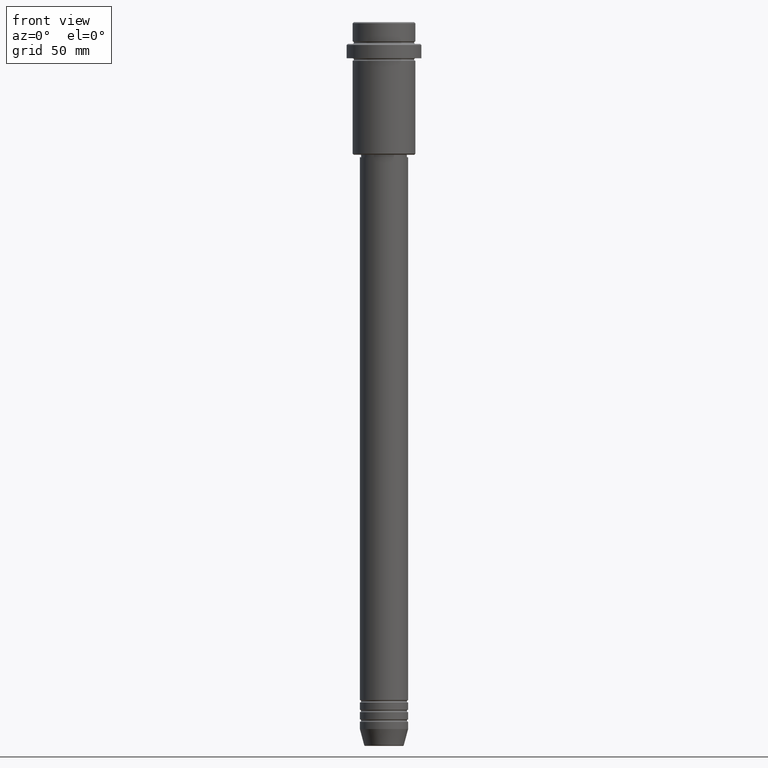
[diagram: clean part render]
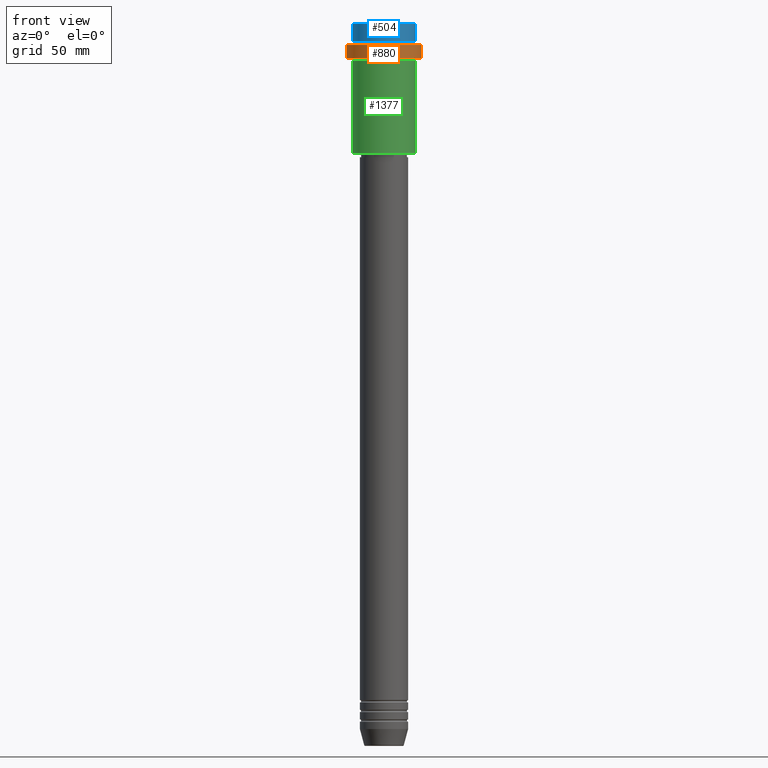
[diagram: same view with three faces highlighted in distinct colors, each labeled with its STEP entity id]
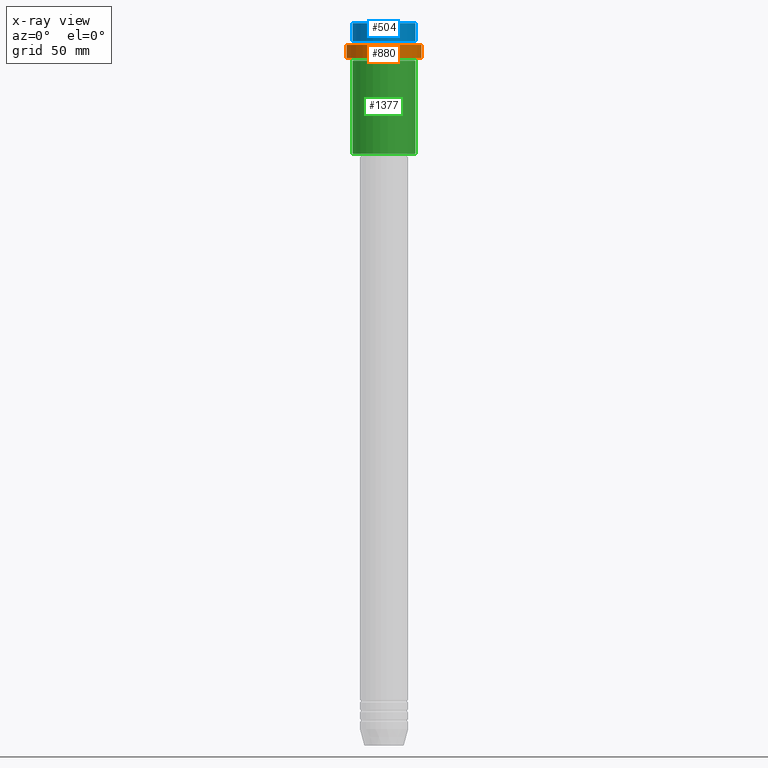
[diagram: x-ray of the same camera — body ghosted, the three highlighted faces saturated]
A machine part, front view with three faces highlighted in distinct colors.
The next image is the same camera in x-ray (body ghosted, the three faces saturated) — at least one of them is partly hidden behind the body in this view.
Their STEP definitions:

[orange] entity #880 — the highlighted cylindrical surface (partial cylindrical patch) has radius 15.5 mm, axis along (-0, -0, 1).
#2 = FACE_OUTER_BOUND ( 'NONE', #513, .T. ) ;
#29 = CYLINDRICAL_SURFACE ( 'NONE', #918, 15.50000000000000000 ) ;
#110 = DIRECTION ( 'NONE',  ( 1.000000000000000000, 0.000000000000000000, 0.000000000000000000 ) ) ;
#116 = AXIS2_PLACEMENT_3D ( 'NONE', #165, #927, #510 ) ;
#154 = DIRECTION ( 'NONE',  ( -0.000000000000000000, -0.000000000000000000, 1.000000000000000000 ) ) ;
#165 = CARTESIAN_POINT ( 'NONE',  ( 0.000000000000000000, 0.000000000000000000, -9.499999999999984013 ) ) ;
#170 = ORIENTED_EDGE ( 'NONE', *, *, #972, .T. ) ;
#191 = LINE ( 'NONE', #594, #616 ) ;
#255 = DIRECTION ( 'NONE',  ( -0.000000000000000000, -0.000000000000000000, 1.000000000000000000 ) ) ;
#347 = VECTOR ( 'NONE', #255, 1000.000000000000000 ) ;
#375 = LINE ( 'NONE', #698, #347 ) ;
#447 = VERTEX_POINT ( 'NONE', #1336 ) ;
#497 = EDGE_CURVE ( 'NONE', #447, #566, #1222, .T. ) ;
#510 = DIRECTION ( 'NONE',  ( 1.000000000000000000, 0.000000000000000000, 0.000000000000000000 ) ) ;
#513 = EDGE_LOOP ( 'NONE', ( #1230, #647, #170, #1190 ) ) ;
#566 = VERTEX_POINT ( 'NONE', #589 ) ;
#589 = CARTESIAN_POINT ( 'NONE',  ( -15.50000000000000000, 1.898202538678397557E-15, -9.499999999999984013 ) ) ;
#594 = CARTESIAN_POINT ( 'NONE',  ( 15.50000000000000000, 0.000000000000000000, 0.000000000000000000 ) ) ;
#616 = VECTOR ( 'NONE', #154, 1000.000000000000000 ) ;
#647 = ORIENTED_EDGE ( 'NONE', *, *, #1239, .T. ) ;
#679 = CARTESIAN_POINT ( 'NONE',  ( -15.50000000000000000, 1.898202538678397557E-15, -15.00000000000000000 ) ) ;
#698 = CARTESIAN_POINT ( 'NONE',  ( -15.50000000000000000, 1.898202538678397557E-15, 0.000000000000000000 ) ) ;
#850 = AXIS2_PLACEMENT_3D ( 'NONE', #999, #1129, #1363 ) ;
#869 = VERTEX_POINT ( 'NONE', #679 ) ;
#872 = CARTESIAN_POINT ( 'NONE',  ( 0.000000000000000000, 0.000000000000000000, 0.000000000000000000 ) ) ;
#880 = ADVANCED_FACE ( 'NONE', ( #2 ), #29, .T. ) ;
#918 = AXIS2_PLACEMENT_3D ( 'NONE', #872, #1094, #110 ) ;
#920 = CIRCLE ( 'NONE', #850, 15.50000000000000000 ) ;
#927 = DIRECTION ( 'NONE',  ( 0.000000000000000000, 0.000000000000000000, -1.000000000000000000 ) ) ;
#969 = VERTEX_POINT ( 'NONE', #1168 ) ;
#972 = EDGE_CURVE ( 'NONE', #969, #447, #191, .T. ) ;
#999 = CARTESIAN_POINT ( 'NONE',  ( 0.000000000000000000, 0.000000000000000000, -15.00000000000000000 ) ) ;
#1094 = DIRECTION ( 'NONE',  ( -0.000000000000000000, -0.000000000000000000, 1.000000000000000000 ) ) ;
#1129 = DIRECTION ( 'NONE',  ( -0.000000000000000000, -0.000000000000000000, 1.000000000000000000 ) ) ;
#1168 = CARTESIAN_POINT ( 'NONE',  ( 15.50000000000000000, 0.000000000000000000, -15.00000000000000000 ) ) ;
#1190 = ORIENTED_EDGE ( 'NONE', *, *, #497, .T. ) ;
#1222 = CIRCLE ( 'NONE', #116, 15.50000000000000000 ) ;
#1230 = ORIENTED_EDGE ( 'NONE', *, *, #1249, .F. ) ;
#1239 = EDGE_CURVE ( 'NONE', #869, #969, #920, .T. ) ;
#1249 = EDGE_CURVE ( 'NONE', #869, #566, #375, .T. ) ;
#1336 = CARTESIAN_POINT ( 'NONE',  ( 15.50000000000000000, 0.000000000000000000, -9.499999999999984013 ) ) ;
#1363 = DIRECTION ( 'NONE',  ( 1.000000000000000000, 0.000000000000000000, 0.000000000000000000 ) ) ;

[blue] entity #504 — the highlighted cylindrical surface (edge-blend (fillet) strip) has radius 13 mm, axis along (-0, -0, 1).
#19 = CARTESIAN_POINT ( 'NONE',  ( -12.99999999999999822, 1.592040838891558898E-15, 0.000000000000000000 ) ) ;
#44 = DIRECTION ( 'NONE',  ( -0.000000000000000000, -0.000000000000000000, 1.000000000000000000 ) ) ;
#98 = VERTEX_POINT ( 'NONE', #499 ) ;
#129 = DIRECTION ( 'NONE',  ( 0.000000000000000000, 0.000000000000000000, -1.000000000000000000 ) ) ;
#136 = DIRECTION ( 'NONE',  ( 1.000000000000000000, 0.000000000000000000, 0.000000000000000000 ) ) ;
#163 = AXIS2_PLACEMENT_3D ( 'NONE', #1132, #262, #498 ) ;
#262 = DIRECTION ( 'NONE',  ( -0.000000000000000000, -0.000000000000000000, 1.000000000000000000 ) ) ;
#306 = CARTESIAN_POINT ( 'NONE',  ( -12.99999999999999822, 1.592040838891558898E-15, -0.5000000000000316414 ) ) ;
#320 = AXIS2_PLACEMENT_3D ( 'NONE', #583, #129, #136 ) ;
#386 = EDGE_CURVE ( 'NONE', #98, #1037, #687, .T. ) ;
#479 = FACE_OUTER_BOUND ( 'NONE', #976, .T. ) ;
#498 = DIRECTION ( 'NONE',  ( 1.000000000000000000, 0.000000000000000000, 0.000000000000000000 ) ) ;
#499 = CARTESIAN_POINT ( 'NONE',  ( -12.99999999999999822, 1.592040838891558898E-15, -7.999999999999998224 ) ) ;
#504 = ADVANCED_FACE ( 'NONE', ( #479 ), #947, .T. ) ;
#514 = DIRECTION ( 'NONE',  ( -0.000000000000000000, -0.000000000000000000, 1.000000000000000000 ) ) ;
#531 = VECTOR ( 'NONE', #44, 1000.000000000000000 ) ;
#570 = ORIENTED_EDGE ( 'NONE', *, *, #1299, .T. ) ;
#583 = CARTESIAN_POINT ( 'NONE',  ( 0.000000000000000000, 0.000000000000000000, -0.5000000000000316414 ) ) ;
#620 = VECTOR ( 'NONE', #882, 1000.000000000000000 ) ;
#664 = AXIS2_PLACEMENT_3D ( 'NONE', #1162, #514, #1391 ) ;
#687 = LINE ( 'NONE', #19, #620 ) ;
#711 = VERTEX_POINT ( 'NONE', #1290 ) ;
#721 = EDGE_CURVE ( 'NONE', #98, #1253, #1376, .T. ) ;
#827 = ORIENTED_EDGE ( 'NONE', *, *, #721, .T. ) ;
#860 = EDGE_CURVE ( 'NONE', #711, #1037, #1033, .T. ) ;
#882 = DIRECTION ( 'NONE',  ( -0.000000000000000000, -0.000000000000000000, 1.000000000000000000 ) ) ;
#910 = ORIENTED_EDGE ( 'NONE', *, *, #860, .T. ) ;
#947 = CYLINDRICAL_SURFACE ( 'NONE', #163, 12.99999999999999822 ) ;
#951 = ORIENTED_EDGE ( 'NONE', *, *, #386, .F. ) ;
#976 = EDGE_LOOP ( 'NONE', ( #951, #827, #570, #910 ) ) ;
#1021 = LINE ( 'NONE', #1109, #531 ) ;
#1033 = CIRCLE ( 'NONE', #320, 12.99999999999999822 ) ;
#1037 = VERTEX_POINT ( 'NONE', #306 ) ;
#1109 = CARTESIAN_POINT ( 'NONE',  ( 12.99999999999999822, 0.000000000000000000, 0.000000000000000000 ) ) ;
#1132 = CARTESIAN_POINT ( 'NONE',  ( 0.000000000000000000, 0.000000000000000000, 0.000000000000000000 ) ) ;
#1162 = CARTESIAN_POINT ( 'NONE',  ( 0.000000000000000000, 0.000000000000000000, -7.999999999999998224 ) ) ;
#1225 = CARTESIAN_POINT ( 'NONE',  ( 12.99999999999999822, 0.000000000000000000, -7.999999999999998224 ) ) ;
#1253 = VERTEX_POINT ( 'NONE', #1225 ) ;
#1290 = CARTESIAN_POINT ( 'NONE',  ( 12.99999999999999822, 0.000000000000000000, -0.5000000000000316414 ) ) ;
#1299 = EDGE_CURVE ( 'NONE', #1253, #711, #1021, .T. ) ;
#1376 = CIRCLE ( 'NONE', #664, 12.99999999999999822 ) ;
#1391 = DIRECTION ( 'NONE',  ( 1.000000000000000000, 0.000000000000000000, 0.000000000000000000 ) ) ;

[green] entity #1377 — the highlighted cylindrical surface (edge-blend (fillet) strip) has radius 13 mm, axis along (-0, -0, 1).
#46 = CARTESIAN_POINT ( 'NONE',  ( 13.00000000000000000, 0.000000000000000000, 0.000000000000000000 ) ) ;
#94 = CIRCLE ( 'NONE', #1009, 13.00000000000000000 ) ;
#103 = DIRECTION ( 'NONE',  ( 1.000000000000000000, 0.000000000000000000, 0.000000000000000000 ) ) ;
#121 = AXIS2_PLACEMENT_3D ( 'NONE', #238, #137, #551 ) ;
#123 = CARTESIAN_POINT ( 'NONE',  ( 13.00000000000000000, 0.000000000000000000, -54.49999999999997868 ) ) ;
#137 = DIRECTION ( 'NONE',  ( -0.000000000000000000, -0.000000000000000000, 1.000000000000000000 ) ) ;
#211 = VECTOR ( 'NONE', #231, 1000.000000000000000 ) ;
#225 = DIRECTION ( 'NONE',  ( -0.000000000000000000, -0.000000000000000000, 1.000000000000000000 ) ) ;
#231 = DIRECTION ( 'NONE',  ( -0.000000000000000000, -0.000000000000000000, 1.000000000000000000 ) ) ;
#233 = EDGE_LOOP ( 'NONE', ( #241, #982, #1315, #649 ) ) ;
#238 = CARTESIAN_POINT ( 'NONE',  ( 0.000000000000000000, 0.000000000000000000, -54.49999999999997868 ) ) ;
#241 = ORIENTED_EDGE ( 'NONE', *, *, #1291, .F. ) ;
#339 = VERTEX_POINT ( 'NONE', #1010 ) ;
#366 = EDGE_CURVE ( 'NONE', #1352, #769, #787, .T. ) ;
#388 = CARTESIAN_POINT ( 'NONE',  ( 0.000000000000000000, 0.000000000000000000, 0.000000000000000000 ) ) ;
#452 = VERTEX_POINT ( 'NONE', #680 ) ;
#478 = DIRECTION ( 'NONE',  ( -0.000000000000000000, -0.000000000000000000, 1.000000000000000000 ) ) ;
#500 = DIRECTION ( 'NONE',  ( -0.000000000000000000, -0.000000000000000000, 1.000000000000000000 ) ) ;
#551 = DIRECTION ( 'NONE',  ( -1.000000000000000000, 0.000000000000000000, 0.000000000000000000 ) ) ;
#649 = ORIENTED_EDGE ( 'NONE', *, *, #1051, .F. ) ;
#670 = CARTESIAN_POINT ( 'NONE',  ( -13.00000000000000000, 1.592040838891559095E-15, -54.49999999999997868 ) ) ;
#680 = CARTESIAN_POINT ( 'NONE',  ( 13.00000000000000000, 0.000000000000000000, -16.00000000000000000 ) ) ;
#769 = VERTEX_POINT ( 'NONE', #123 ) ;
#787 = CIRCLE ( 'NONE', #121, 13.00000000000000000 ) ;
#794 = FACE_OUTER_BOUND ( 'NONE', #233, .T. ) ;
#900 = LINE ( 'NONE', #1237, #211 ) ;
#982 = ORIENTED_EDGE ( 'NONE', *, *, #366, .T. ) ;
#986 = VECTOR ( 'NONE', #478, 1000.000000000000000 ) ;
#1009 = AXIS2_PLACEMENT_3D ( 'NONE', #1307, #225, #103 ) ;
#1010 = CARTESIAN_POINT ( 'NONE',  ( -13.00000000000000000, 1.592040838891559095E-15, -16.00000000000000000 ) ) ;
#1023 = LINE ( 'NONE', #46, #986 ) ;
#1045 = EDGE_CURVE ( 'NONE', #769, #452, #1023, .T. ) ;
#1048 = CYLINDRICAL_SURFACE ( 'NONE', #1169, 13.00000000000000000 ) ;
#1051 = EDGE_CURVE ( 'NONE', #339, #452, #94, .T. ) ;
#1169 = AXIS2_PLACEMENT_3D ( 'NONE', #388, #500, #1252 ) ;
#1237 = CARTESIAN_POINT ( 'NONE',  ( -13.00000000000000000, 1.592040838891559095E-15, 0.000000000000000000 ) ) ;
#1252 = DIRECTION ( 'NONE',  ( 1.000000000000000000, 0.000000000000000000, 0.000000000000000000 ) ) ;
#1291 = EDGE_CURVE ( 'NONE', #1352, #339, #900, .T. ) ;
#1307 = CARTESIAN_POINT ( 'NONE',  ( 0.000000000000000000, 0.000000000000000000, -16.00000000000000000 ) ) ;
#1315 = ORIENTED_EDGE ( 'NONE', *, *, #1045, .T. ) ;
#1352 = VERTEX_POINT ( 'NONE', #670 ) ;
#1377 = ADVANCED_FACE ( 'NONE', ( #794 ), #1048, .T. ) ;